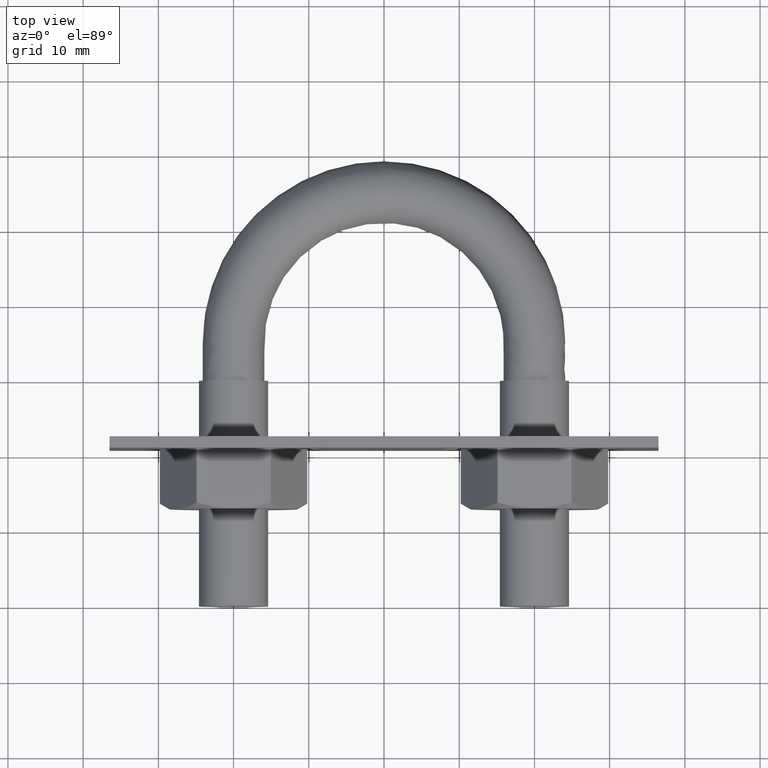
[diagram: clean part render]
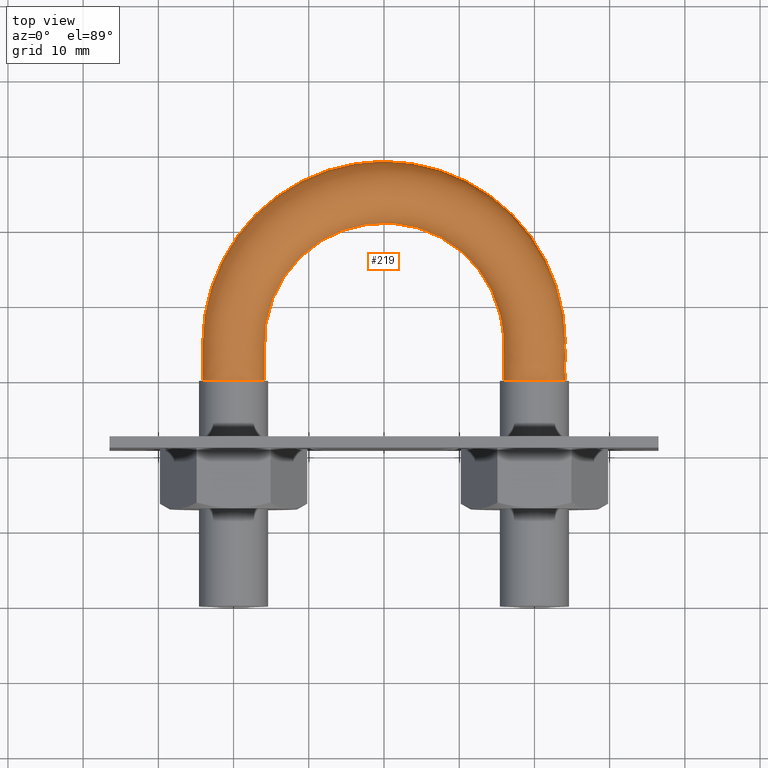
[diagram: same view with one face highlighted and labeled with its STEP entity id]
A machine part, top view. The second image highlights one B-rep face of the part: STEP entity #219.
In plain terms, the highlighted face is a freeform B-spline surface patch.
Its self-contained STEP definition (entity closure, byte-faithful):
#219 = ADVANCED_FACE( '', ( #291, #292 ), #293, .F. );
#291 = FACE_OUTER_BOUND( '', #452, .T. );
#292 = FACE_OUTER_BOUND( '', #453, .T. );
#293 = B_SPLINE_SURFACE_WITH_KNOTS( '', 3, 3, ( ( #454, #455, #456, #457, #458, #459, #460, #461, #462, #463, #464, #465, #466, #467, #468, #469 ), ( #470, #471, #472, #473, #474, #475, #476, #477, #478, #479, #480, #481, #482, #483, #484, #485 ), ( #486, #487, #488, #489, #490, #491, #492, #493, #494, #495, #496, #497, #498, #499, #500, #501 ), ( #502, #503, #504, #505, #506, #507, #508, #509, #510, #511, #512, #513, #514, #515, #516, #517 ), ( #518, #519, #520, #521, #522, #523, #524, #525, #526, #527, #528, #529, #530, #531, #532, #533 ), ( #534, #535, #536, #537, #538, #539, #540, #541, #542, #543, #544, #545, #546, #547, #548, #549 ), ( #550, #551, #552, #553, #554, #555, #556, #557, #558, #559, #560, #561, #562, #563, #564, #565 ), ( #566, #567, #568, #569, #570, #571, #572, #573, #574, #575, #576, #577, #578, #579, #580, #581 ), ( #582, #583, #584, #585, #586, #587, #588, #589, #590, #591, #592, #593, #594, #595, #596, #597 ), ( #598, #599, #600, #601, #602, #603, #604, #605, #606, #607, #608, #609, #610, #611, #612, #613 ) ), .UNSPECIFIED., .T., .F., .F., ( 2, 1, 1, 1, 1, 1, 1, 1, 1, 1, 1, 2 ), ( 4, 3, 1, 1, 1, 1, 1, 1, 3, 4 ), ( -0.285714285714286, -0.142857142857143, 0.000000000000000, 0.142857142857143, 0.285714285714286, 0.428571428571429, 0.571428571428571, 0.714285714285714, 0.857142857142857, 1.00000000000000, 1.14285714285714, 1.28571428571429 ), ( 0.000000000000000, 1.00000000000000, 1.50000000000000, 2.00000000000000, 3.00000000000000, 4.00000000000000, 5.00000000000000, 5.50000000000000, 6.00000000000000, 7.00000000000000 ), .UNSPECIFIED. );
#452 = EDGE_LOOP( '', ( #772 ) );
#453 = EDGE_LOOP( '', ( #773 ) );
#454 = CARTESIAN_POINT( '', ( -17.0768231851220, -2.21303224179142E-015, -3.66554778583225 ) );
#455 = CARTESIAN_POINT( '', ( -17.0768231851220, 1.70000000000002, -3.66554778583225 ) );
#456 = CARTESIAN_POINT( '', ( -17.0768231851219, 3.40000000000005, -3.66554778583225 ) );
#457 = CARTESIAN_POINT( '', ( -17.0768231851219, 5.10000000000008, -3.66554778583225 ) );
#458 = CARTESIAN_POINT( '', ( -17.0768231851219, 6.87589522768872, -3.66554778583225 ) );
#459 = CARTESIAN_POINT( '', ( -16.4940506041925, 10.4641044421145, -3.66554778583225 ) );
#460 = CARTESIAN_POINT( '', ( -13.2362336290776, 16.9218023077661, -3.66554778583225 ) );
#461 = CARTESIAN_POINT( '', ( -5.63524681783554, 22.4458293828465, -3.66554778583225 ) );
#462 = CARTESIAN_POINT( '', ( 5.63524681783563, 22.4458293828465, -3.66554778583225 ) );
#463 = CARTESIAN_POINT( '', ( 13.2362336290776, 16.9218023077660, -3.66554778583225 ) );
#464 = CARTESIAN_POINT( '', ( 16.4940506041925, 10.4641044421144, -3.66554778583224 ) );
#465 = CARTESIAN_POINT( '', ( 17.0768231851219, 6.87589522768864, -3.66554778583225 ) );
#466 = CARTESIAN_POINT( '', ( 17.0768231851219, 5.10000000000000, -3.66554778583225 ) );
#467 = CARTESIAN_POINT( '', ( 17.0768231851219, 3.40000000000000, -3.66554778583225 ) );
#468 = CARTESIAN_POINT( '', ( 17.0768231851219, 1.69999999999999, -3.66554778583225 ) );
#469 = CARTESIAN_POINT( '', ( 17.0768231851219, -1.36956844490321E-014, -3.66554778583225 ) );
#470 = CARTESIAN_POINT( '', ( -15.3115884074390, -3.18945006064990E-015, 0.000000000000000 ) );
#471 = CARTESIAN_POINT( '', ( -15.3115884074390, 1.70000000000002, 0.000000000000000 ) );
#472 = CARTESIAN_POINT( '', ( -15.3115884074390, 3.40000000000005, 0.000000000000000 ) );
#473 = CARTESIAN_POINT( '', ( -15.3115884074390, 5.10000000000008, 0.000000000000000 ) );
#474 = CARTESIAN_POINT( '', ( -15.3115884074390, 6.68470871177389, 0.000000000000000 ) );
#475 = CARTESIAN_POINT( '', ( -14.7874642643519, 9.91253728966583, 0.000000000000000 ) );
#476 = CARTESIAN_POINT( '', ( -11.8689305787968, 15.6981107389134, 0.000000000000000 ) );
#477 = CARTESIAN_POINT( '', ( -5.05233195645793, 20.6532047274269, 0.000000000000000 ) );
#478 = CARTESIAN_POINT( '', ( 5.05233195645803, 20.6532047274269, 0.000000000000000 ) );
#479 = CARTESIAN_POINT( '', ( 11.8689305787968, 15.6981107389133, 0.000000000000000 ) );
#480 = CARTESIAN_POINT( '', ( 14.7874642643519, 9.91253728966575, 0.000000000000000 ) );
#481 = CARTESIAN_POINT( '', ( 15.3115884074390, 6.68470871177380, 0.000000000000000 ) );
#482 = CARTESIAN_POINT( '', ( 15.3115884074390, 5.09999999999999, 0.000000000000000 ) );
#483 = CARTESIAN_POINT( '', ( 15.3115884074390, 3.39999999999999, 0.000000000000000 ) );
#484 = CARTESIAN_POINT( '', ( 15.3115884074390, 1.69999999999998, 0.000000000000000 ) );
#485 = CARTESIAN_POINT( '', ( 15.3115884074390, -2.23261504245494E-014, 0.000000000000000 ) );
#486 = CARTESIAN_POINT( '', ( -17.0768231851220, -1.76414693091445E-015, 3.66554778583225 ) );
#487 = CARTESIAN_POINT( '', ( -17.0768231851220, 1.70000000000002, 3.66554778583225 ) );
#488 = CARTESIAN_POINT( '', ( -17.0768231851219, 3.40000000000005, 3.66554778583225 ) );
#489 = CARTESIAN_POINT( '', ( -17.0768231851219, 5.10000000000008, 3.66554778583225 ) );
#490 = CARTESIAN_POINT( '', ( -17.0768231851219, 6.87589522768872, 3.66554778583225 ) );
#491 = CARTESIAN_POINT( '', ( -16.4940506041925, 10.4641044421145, 3.66554778583225 ) );
#492 = CARTESIAN_POINT( '', ( -13.2362336290776, 16.9218023077661, 3.66554778583225 ) );
#493 = CARTESIAN_POINT( '', ( -5.63524681783554, 22.4458293828465, 3.66554778583225 ) );
#494 = CARTESIAN_POINT( '', ( 5.63524681783563, 22.4458293828465, 3.66554778583225 ) );
#495 = CARTESIAN_POINT( '', ( 13.2362336290776, 16.9218023077660, 3.66554778583225 ) );
#496 = CARTESIAN_POINT( '', ( 16.4940506041925, 10.4641044421144, 3.66554778583224 ) );
#497 = CARTESIAN_POINT( '', ( 17.0768231851219, 6.87589522768864, 3.66554778583225 ) );
#498 = CARTESIAN_POINT( '', ( 17.0768231851219, 5.10000000000000, 3.66554778583225 ) );
#499 = CARTESIAN_POINT( '', ( 17.0768231851219, 3.39999999999999, 3.66554778583225 ) );
#500 = CARTESIAN_POINT( '', ( 17.0768231851219, 1.69999999999999, 3.66554778583225 ) );
#501 = CARTESIAN_POINT( '', ( 17.0768231851219, -1.41445697599091E-014, 3.66554778583225 ) );
#502 = CARTESIAN_POINT( '', ( -21.0432697263483, 9.89594819838805E-016, 4.57086332538454 ) );
#503 = CARTESIAN_POINT( '', ( -21.0432697263483, 1.70000000000003, 4.57086332538454 ) );
#504 = CARTESIAN_POINT( '', ( -21.0432697263483, 3.40000000000005, 4.57086332538454 ) );
#505 = CARTESIAN_POINT( '', ( -21.0432697263483, 5.10000000000008, 4.57086332538454 ) );
#506 = CARTESIAN_POINT( '', ( -21.0432697263483, 7.30548742945516, 4.57086332538453 ) );
#507 = CARTESIAN_POINT( '', ( -20.3287153017971, 11.7034645837472, 4.57086332538454 ) );
#508 = CARTESIAN_POINT( '', ( -16.3085356951593, 19.6714123042191, 4.57086332538454 ) );
#509 = CARTESIAN_POINT( '', ( -6.94504462205481, 26.4738204206953, 4.57086332538454 ) );
#510 = CARTESIAN_POINT( '', ( 6.94504462205490, 26.4738204206953, 4.57086332538453 ) );
#511 = CARTESIAN_POINT( '', ( 16.3085356951593, 19.6714123042191, 4.57086332538454 ) );
#512 = CARTESIAN_POINT( '', ( 20.3287153017971, 11.7034645837471, 4.57086332538453 ) );
#513 = CARTESIAN_POINT( '', ( 21.0432697263483, 7.30548742945510, 4.57086332538454 ) );
#514 = CARTESIAN_POINT( '', ( 21.0432697263483, 5.10000000000001, 4.57086332538454 ) );
#515 = CARTESIAN_POINT( '', ( 21.0432697263483, 3.40000000000001, 4.57086332538454 ) );
#516 = CARTESIAN_POINT( '', ( 21.0432697263483, 1.70000000000001, 4.57086332538454 ) );
#517 = CARTESIAN_POINT( '', ( 21.0432697263483, 4.68816043058382E-015, 4.57086332538454 ) );
#518 = CARTESIAN_POINT( '', ( -24.2241128848102, 2.99815148719789E-015, 2.03422555230246 ) );
#519 = CARTESIAN_POINT( '', ( -24.2241128848102, 1.70000000000003, 2.03422555230246 ) );
#520 = CARTESIAN_POINT( '', ( -24.2241128848102, 3.40000000000005, 2.03422555230246 ) );
#521 = CARTESIAN_POINT( '', ( -24.2241128848102, 5.10000000000008, 2.03422555230246 ) );
#522 = CARTESIAN_POINT( '', ( -24.2241128848102, 7.64999362705916, 2.03422555230246 ) );
#523 = CARTESIAN_POINT( '', ( -23.4038776269648, 12.6973542495748, 2.03422555230246 ) );
#524 = CARTESIAN_POINT( '', ( -18.7723306577413, 21.8764283191211, 2.03422555230247 ) );
#525 = CARTESIAN_POINT( '', ( -7.99542090753257, 29.7040184334300, 2.03422555230247 ) );
#526 = CARTESIAN_POINT( '', ( 7.99542090753264, 29.7040184334299, 2.03422555230246 ) );
#527 = CARTESIAN_POINT( '', ( 18.7723306577414, 21.8764283191210, 2.03422555230247 ) );
#528 = CARTESIAN_POINT( '', ( 23.4038776269649, 12.6973542495748, 2.03422555230246 ) );
#529 = CARTESIAN_POINT( '', ( 24.2241128848102, 7.64999362705910, 2.03422555230246 ) );
#530 = CARTESIAN_POINT( '', ( 24.2241128848102, 5.10000000000002, 2.03422555230246 ) );
#531 = CARTESIAN_POINT( '', ( 24.2241128848102, 3.40000000000002, 2.03422555230246 ) );
#532 = CARTESIAN_POINT( '', ( 24.2241128848102, 1.70000000000002, 2.03422555230246 ) );
#533 = CARTESIAN_POINT( '', ( 24.2241128848102, 1.99906101958024E-014, 2.03422555230246 ) );
#534 = CARTESIAN_POINT( '', ( -24.2241128848102, 2.74903893355215E-015, -2.03422555230246 ) );
#535 = CARTESIAN_POINT( '', ( -24.2241128848102, 1.70000000000003, -2.03422555230246 ) );
#536 = CARTESIAN_POINT( '', ( -24.2241128848102, 3.40000000000005, -2.03422555230246 ) );
#537 = CARTESIAN_POINT( '', ( -24.2241128848102, 5.10000000000008, -2.03422555230246 ) );
#538 = CARTESIAN_POINT( '', ( -24.2241128848102, 7.64999362705916, -2.03422555230246 ) );
#539 = CARTESIAN_POINT( '', ( -23.4038776269648, 12.6973542495748, -2.03422555230246 ) );
#540 = CARTESIAN_POINT( '', ( -18.7723306577413, 21.8764283191211, -2.03422555230247 ) );
#541 = CARTESIAN_POINT( '', ( -7.99542090753257, 29.7040184334300, -2.03422555230246 ) );
#542 = CARTESIAN_POINT( '', ( 7.99542090753264, 29.7040184334299, -2.03422555230246 ) );
#543 = CARTESIAN_POINT( '', ( 18.7723306577414, 21.8764283191210, -2.03422555230246 ) );
#544 = CARTESIAN_POINT( '', ( 23.4038776269649, 12.6973542495748, -2.03422555230246 ) );
#545 = CARTESIAN_POINT( '', ( 24.2241128848102, 7.64999362705910, -2.03422555230246 ) );
#546 = CARTESIAN_POINT( '', ( 24.2241128848102, 5.10000000000002, -2.03422555230246 ) );
#547 = CARTESIAN_POINT( '', ( 24.2241128848102, 3.40000000000002, -2.03422555230246 ) );
#548 = CARTESIAN_POINT( '', ( 24.2241128848102, 1.70000000000002, -2.03422555230246 ) );
#549 = CARTESIAN_POINT( '', ( 24.2241128848102, 2.02397227494481E-014, -2.03422555230246 ) );
#550 = CARTESIAN_POINT( '', ( -21.0432697263483, 4.29843992766846E-016, -4.57086332538454 ) );
#551 = CARTESIAN_POINT( '', ( -21.0432697263483, 1.70000000000003, -4.57086332538454 ) );
#552 = CARTESIAN_POINT( '', ( -21.0432697263483, 3.40000000000005, -4.57086332538454 ) );
#553 = CARTESIAN_POINT( '', ( -21.0432697263483, 5.10000000000008, -4.57086332538454 ) );
#554 = CARTESIAN_POINT( '', ( -21.0432697263483, 7.30548742945516, -4.57086332538454 ) );
#555 = CARTESIAN_POINT( '', ( -20.3287153017971, 11.7034645837472, -4.57086332538454 ) );
#556 = CARTESIAN_POINT( '', ( -16.3085356951593, 19.6714123042191, -4.57086332538454 ) );
#557 = CARTESIAN_POINT( '', ( -6.94504462205482, 26.4738204206953, -4.57086332538454 ) );
#558 = CARTESIAN_POINT( '', ( 6.94504462205490, 26.4738204206953, -4.57086332538453 ) );
#559 = CARTESIAN_POINT( '', ( 16.3085356951593, 19.6714123042191, -4.57086332538454 ) );
#560 = CARTESIAN_POINT( '', ( 20.3287153017971, 11.7034645837471, -4.57086332538453 ) );
#561 = CARTESIAN_POINT( '', ( 21.0432697263483, 7.30548742945510, -4.57086332538454 ) );
#562 = CARTESIAN_POINT( '', ( 21.0432697263483, 5.10000000000001, -4.57086332538454 ) );
#563 = CARTESIAN_POINT( '', ( 21.0432697263483, 3.40000000000001, -4.57086332538454 ) );
#564 = CARTESIAN_POINT( '', ( 21.0432697263483, 1.70000000000001, -4.57086332538454 ) );
#565 = CARTESIAN_POINT( '', ( 21.0432697263483, 5.24791125765576E-015, -4.57086332538454 ) );
#566 = CARTESIAN_POINT( '', ( -17.0768231851220, -2.21303224179142E-015, -3.66554778583225 ) );
#567 = CARTESIAN_POINT( '', ( -17.0768231851220, 1.70000000000002, -3.66554778583225 ) );
#568 = CARTESIAN_POINT( '', ( -17.0768231851219, 3.40000000000005, -3.66554778583225 ) );
#569 = CARTESIAN_POINT( '', ( -17.0768231851219, 5.10000000000008, -3.66554778583225 ) );
#570 = CARTESIAN_POINT( '', ( -17.0768231851219, 6.87589522768872, -3.66554778583225 ) );
#571 = CARTESIAN_POINT( '', ( -16.4940506041925, 10.4641044421145, -3.66554778583225 ) );
#572 = CARTESIAN_POINT( '', ( -13.2362336290776, 16.9218023077661, -3.66554778583225 ) );
#573 = CARTESIAN_POINT( '', ( -5.63524681783554, 22.4458293828465, -3.66554778583225 ) );
#574 = CARTESIAN_POINT( '', ( 5.63524681783563, 22.4458293828465, -3.66554778583225 ) );
#575 = CARTESIAN_POINT( '', ( 13.2362336290776, 16.9218023077660, -3.66554778583225 ) );
#576 = CARTESIAN_POINT( '', ( 16.4940506041925, 10.4641044421144, -3.66554778583224 ) );
#577 = CARTESIAN_POINT( '', ( 17.0768231851219, 6.87589522768864, -3.66554778583225 ) );
#578 = CARTESIAN_POINT( '', ( 17.0768231851219, 5.10000000000000, -3.66554778583225 ) );
#579 = CARTESIAN_POINT( '', ( 17.0768231851219, 3.40000000000000, -3.66554778583225 ) );
#580 = CARTESIAN_POINT( '', ( 17.0768231851219, 1.69999999999999, -3.66554778583225 ) );
#581 = CARTESIAN_POINT( '', ( 17.0768231851219, -1.36956844490321E-014, -3.66554778583225 ) );
#582 = CARTESIAN_POINT( '', ( -15.3115884074390, -3.18945006064990E-015, 0.000000000000000 ) );
#583 = CARTESIAN_POINT( '', ( -15.3115884074390, 1.70000000000002, 0.000000000000000 ) );
#584 = CARTESIAN_POINT( '', ( -15.3115884074390, 3.40000000000005, 0.000000000000000 ) );
#585 = CARTESIAN_POINT( '', ( -15.3115884074390, 5.10000000000008, 0.000000000000000 ) );
#586 = CARTESIAN_POINT( '', ( -15.3115884074390, 6.68470871177389, 0.000000000000000 ) );
#587 = CARTESIAN_POINT( '', ( -14.7874642643519, 9.91253728966583, 0.000000000000000 ) );
#588 = CARTESIAN_POINT( '', ( -11.8689305787968, 15.6981107389134, 0.000000000000000 ) );
#589 = CARTESIAN_POINT( '', ( -5.05233195645793, 20.6532047274269, 0.000000000000000 ) );
#590 = CARTESIAN_POINT( '', ( 5.05233195645803, 20.6532047274269, 0.000000000000000 ) );
#591 = CARTESIAN_POINT( '', ( 11.8689305787968, 15.6981107389133, 0.000000000000000 ) );
#592 = CARTESIAN_POINT( '', ( 14.7874642643519, 9.91253728966575, 0.000000000000000 ) );
#593 = CARTESIAN_POINT( '', ( 15.3115884074390, 6.68470871177380, 0.000000000000000 ) );
#594 = CARTESIAN_POINT( '', ( 15.3115884074390, 5.09999999999999, 0.000000000000000 ) );
#595 = CARTESIAN_POINT( '', ( 15.3115884074390, 3.39999999999999, 0.000000000000000 ) );
#596 = CARTESIAN_POINT( '', ( 15.3115884074390, 1.69999999999998, 0.000000000000000 ) );
#597 = CARTESIAN_POINT( '', ( 15.3115884074390, -2.23261504245494E-014, 0.000000000000000 ) );
#598 = CARTESIAN_POINT( '', ( -17.0768231851220, -1.76414693091445E-015, 3.66554778583225 ) );
#599 = CARTESIAN_POINT( '', ( -17.0768231851220, 1.70000000000002, 3.66554778583225 ) );
#600 = CARTESIAN_POINT( '', ( -17.0768231851219, 3.40000000000005, 3.66554778583225 ) );
#601 = CARTESIAN_POINT( '', ( -17.0768231851219, 5.10000000000008, 3.66554778583225 ) );
#602 = CARTESIAN_POINT( '', ( -17.0768231851219, 6.87589522768872, 3.66554778583225 ) );
#603 = CARTESIAN_POINT( '', ( -16.4940506041925, 10.4641044421145, 3.66554778583225 ) );
#604 = CARTESIAN_POINT( '', ( -13.2362336290776, 16.9218023077661, 3.66554778583225 ) );
#605 = CARTESIAN_POINT( '', ( -5.63524681783554, 22.4458293828465, 3.66554778583225 ) );
#606 = CARTESIAN_POINT( '', ( 5.63524681783563, 22.4458293828465, 3.66554778583225 ) );
#607 = CARTESIAN_POINT( '', ( 13.2362336290776, 16.9218023077660, 3.66554778583225 ) );
#608 = CARTESIAN_POINT( '', ( 16.4940506041925, 10.4641044421144, 3.66554778583224 ) );
#609 = CARTESIAN_POINT( '', ( 17.0768231851219, 6.87589522768864, 3.66554778583225 ) );
#610 = CARTESIAN_POINT( '', ( 17.0768231851219, 5.10000000000000, 3.66554778583225 ) );
#611 = CARTESIAN_POINT( '', ( 17.0768231851219, 3.39999999999999, 3.66554778583225 ) );
#612 = CARTESIAN_POINT( '', ( 17.0768231851219, 1.69999999999999, 3.66554778583225 ) );
#613 = CARTESIAN_POINT( '', ( 17.0768231851219, -1.41445697599091E-014, 3.66554778583225 ) );
#772 = ORIENTED_EDGE( '', *, *, #1298, .T. );
#773 = ORIENTED_EDGE( '', *, *, #1299, .T. );
#1298 = EDGE_CURVE( '', #1456, #1456, #1457, .F. );
#1299 = EDGE_CURVE( '', #1458, #1458, #1459, .T. );
#1456 = VERTEX_POINT( '', #1720 );
#1457 = B_SPLINE_CURVE_WITH_KNOTS( '', 3, ( #1721, #1722, #1723, #1724, #1725, #1726, #1727, #1728, #1729, #1730 ), .UNSPECIFIED., .T., .F., ( 4, 1, 1, 1, 1, 1, 1, 4 ), ( 0.000000000000000, 0.142857142857143, 0.285714285714286, 0.428571428571429, 0.571428571428571, 0.714285714285714, 0.857142857142857, 1.00000000000000 ), .UNSPECIFIED. );
#1458 = VERTEX_POINT( '', #1731 );
#1459 = B_SPLINE_CURVE_WITH_KNOTS( '', 3, ( #1732, #1733, #1734, #1735, #1736, #1737, #1738, #1739, #1740, #1741 ), .UNSPECIFIED., .T., .F., ( 4, 1, 1, 1, 1, 1, 1, 4 ), ( 0.000000000000000, 0.142857142857143, 0.285714285714286, 0.428571428571429, 0.571428571428571, 0.714285714285714, 0.857142857142857, 1.00000000000000 ), .UNSPECIFIED. );
#1720 = CARTESIAN_POINT( '', ( -15.9000000000000, -2.78916323588424E-015, 1.19262238973405E-015 ) );
#1721 = CARTESIAN_POINT( '', ( -15.9000000000000, -2.78916323588424E-015, 4.33680868994202E-016 ) );
#1722 = CARTESIAN_POINT( '', ( -15.9000000000000, -2.71434901740475E-015, 1.22184926194408 ) );
#1723 = CARTESIAN_POINT( '', ( -17.0768231851220, -1.76414693091445E-015, 3.66554778583225 ) );
#1724 = CARTESIAN_POINT( '', ( -21.0432697263483, 9.89594819838805E-016, 4.57086332538454 ) );
#1725 = CARTESIAN_POINT( '', ( -24.2241128848102, 2.99815148719789E-015, 2.03422555230246 ) );
#1726 = CARTESIAN_POINT( '', ( -24.2241128848102, 2.74903893355215E-015, -2.03422555230246 ) );
#1727 = CARTESIAN_POINT( '', ( -21.0432697263483, 4.29843992766846E-016, -4.57086332538454 ) );
#1728 = CARTESIAN_POINT( '', ( -17.0768231851220, -2.21303224179142E-015, -3.66554778583225 ) );
#1729 = CARTESIAN_POINT( '', ( -15.9000000000000, -2.86397745436374E-015, -1.22184926194408 ) );
#1730 = CARTESIAN_POINT( '', ( -15.9000000000000, -2.78916323588424E-015, 4.33680868994202E-016 ) );
#1731 = CARTESIAN_POINT( '', ( 15.9000000000000, -1.95241426511898E-014, 4.33680868994202E-016 ) );
#1732 = CARTESIAN_POINT( '', ( 15.9000000000000, -1.95241426511898E-014, 4.33680868994202E-016 ) );
#1733 = CARTESIAN_POINT( '', ( 15.9000000000000, -1.95989568696693E-014, 1.22184926194408 ) );
#1734 = CARTESIAN_POINT( '', ( 17.0768231851219, -1.41445697599091E-014, 3.66554778583225 ) );
#1735 = CARTESIAN_POINT( '', ( 21.0432697263483, 4.68816043058382E-015, 4.57086332538454 ) );
#1736 = CARTESIAN_POINT( '', ( 24.2241128848102, 1.99906101958024E-014, 2.03422555230246 ) );
#1737 = CARTESIAN_POINT( '', ( 24.2241128848102, 2.02397227494481E-014, -2.03422555230246 ) );
#1738 = CARTESIAN_POINT( '', ( 21.0432697263483, 5.24791125765576E-015, -4.57086332538454 ) );
#1739 = CARTESIAN_POINT( '', ( 17.0768231851219, -1.36956844490321E-014, -3.66554778583225 ) );
#1740 = CARTESIAN_POINT( '', ( 15.9000000000000, -1.94493284327103E-014, -1.22184926194408 ) );
#1741 = CARTESIAN_POINT( '', ( 15.9000000000000, -1.95241426511898E-014, 4.33680868994202E-016 ) );